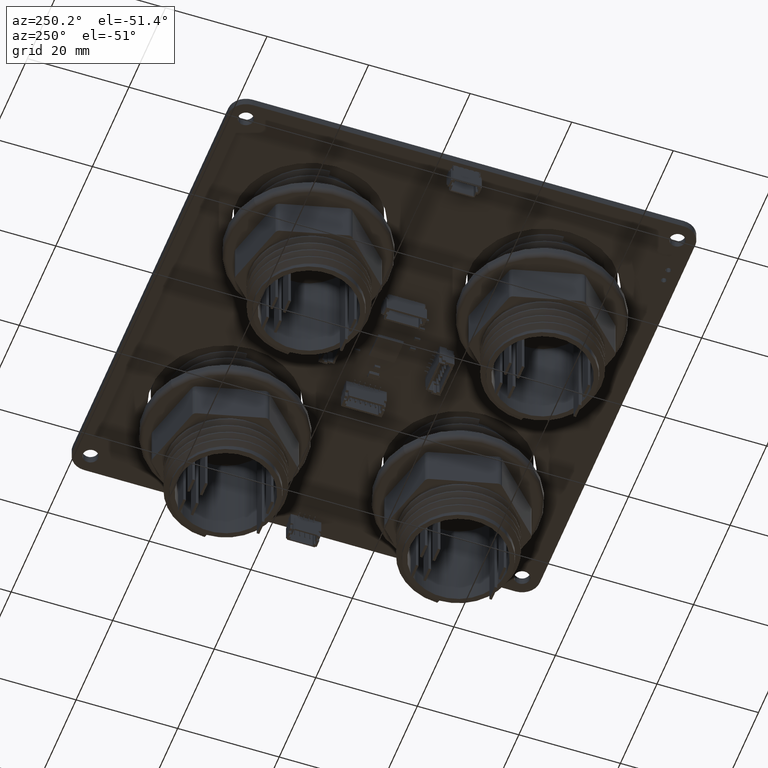
[diagram: clean part render]
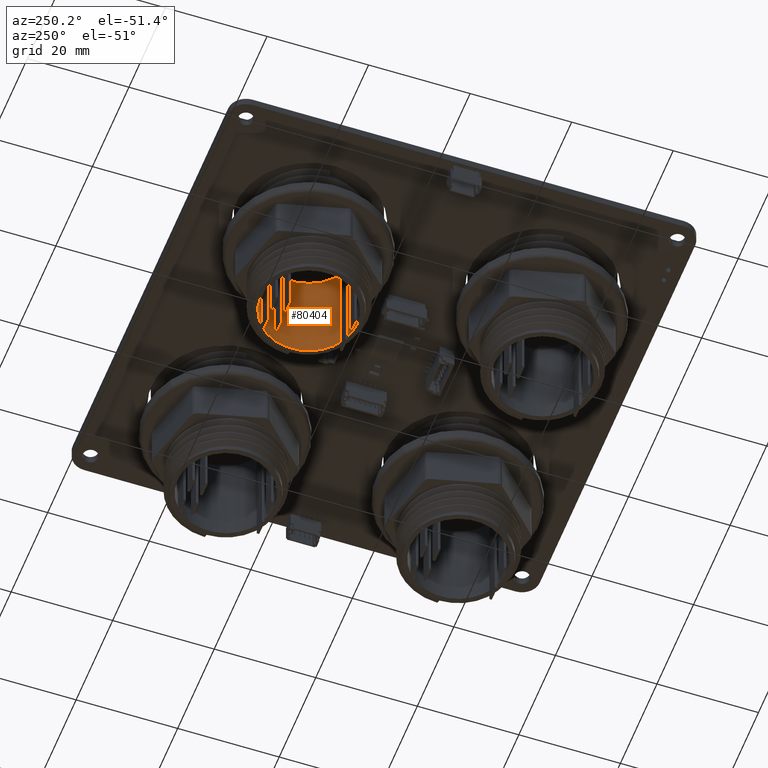
[diagram: same view with one face highlighted and labeled with its STEP entity id]
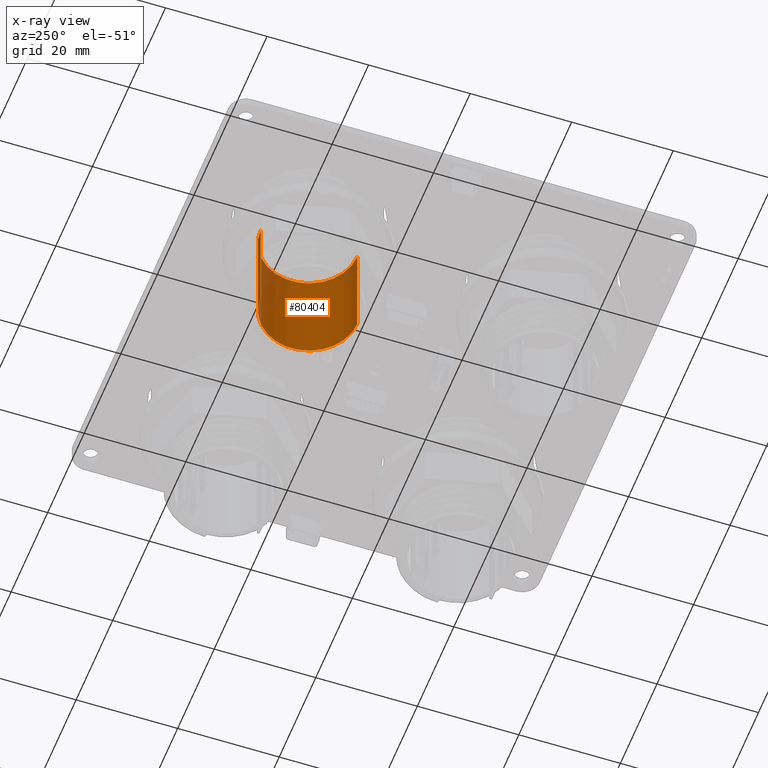
[diagram: x-ray of the same camera — body ghosted, the highlighted face saturated]
A machine part, auxiliary view. The second image highlights one B-rep face of the part: STEP entity #80404.
The next image is the same camera in x-ray: the body ghosted, the highlighted face saturated — about 15% of this face is hidden behind the body in this view.
In plain terms, the highlighted cylindrical surface (partial cylindrical patch) has radius 9.5 mm, axis along (-0, 0, -1).
Its self-contained STEP definition (entity closure, byte-faithful):
#75803 = EDGE_CURVE('',#75804,#75806,#75808,.T.);
#75804 = VERTEX_POINT('',#75805);
#75805 = CARTESIAN_POINT('',(0.,20.,-9.5));
#75806 = VERTEX_POINT('',#75807);
#75807 = CARTESIAN_POINT('',(0.,0.,-9.5));
#75808 = LINE('',#75809,#75810);
#75809 = CARTESIAN_POINT('',(0.,20.,-9.5));
#75810 = VECTOR('',#75811,1.);
#75811 = DIRECTION('',(-0.,-1.,-0.));
#75814 = VERTEX_POINT('',#75815);
#75815 = CARTESIAN_POINT('',(1.16341445919E-15,0.,9.5));
#75822 = EDGE_CURVE('',#75823,#75814,#75825,.T.);
#75823 = VERTEX_POINT('',#75824);
#75824 = CARTESIAN_POINT('',(1.16341445919E-15,20.,9.5));
#75825 = LINE('',#75826,#75827);
#75826 = CARTESIAN_POINT('',(1.16341445919E-15,20.,9.5));
#75827 = VECTOR('',#75828,1.);
#75828 = DIRECTION('',(-0.,-1.,-0.));
#77450 = EDGE_CURVE('',#75804,#75823,#77451,.T.);
#77451 = CIRCLE('',#77452,9.5);
#77452 = AXIS2_PLACEMENT_3D('',#77453,#77454,#77455);
#77453 = CARTESIAN_POINT('',(0.,20.,0.));
#77454 = DIRECTION('',(0.,-1.,0.));
#77455 = DIRECTION('',(0.,0.,-1.));
#78071 = EDGE_CURVE('',#75806,#75814,#78072,.T.);
#78072 = CIRCLE('',#78073,9.5);
#78073 = AXIS2_PLACEMENT_3D('',#78074,#78075,#78076);
#78074 = CARTESIAN_POINT('',(0.,0.,0.));
#78075 = DIRECTION('',(0.,-1.,0.));
#78076 = DIRECTION('',(0.,0.,-1.));
#80404 = ADVANCED_FACE('',(#80405),#80411,.F.);
#80405 = FACE_BOUND('',#80406,.F.);
#80406 = EDGE_LOOP('',(#80407,#80408,#80409,#80410));
#80407 = ORIENTED_EDGE('',*,*,#78071,.F.);
#80408 = ORIENTED_EDGE('',*,*,#75803,.F.);
#80409 = ORIENTED_EDGE('',*,*,#77450,.T.);
#80410 = ORIENTED_EDGE('',*,*,#75822,.T.);
#80411 = CYLINDRICAL_SURFACE('',#80412,9.5);
#80412 = AXIS2_PLACEMENT_3D('',#80413,#80414,#80415);
#80413 = CARTESIAN_POINT('',(0.,20.,0.));
#80414 = DIRECTION('',(-0.,-1.,-0.));
#80415 = DIRECTION('',(0.,0.,-1.));